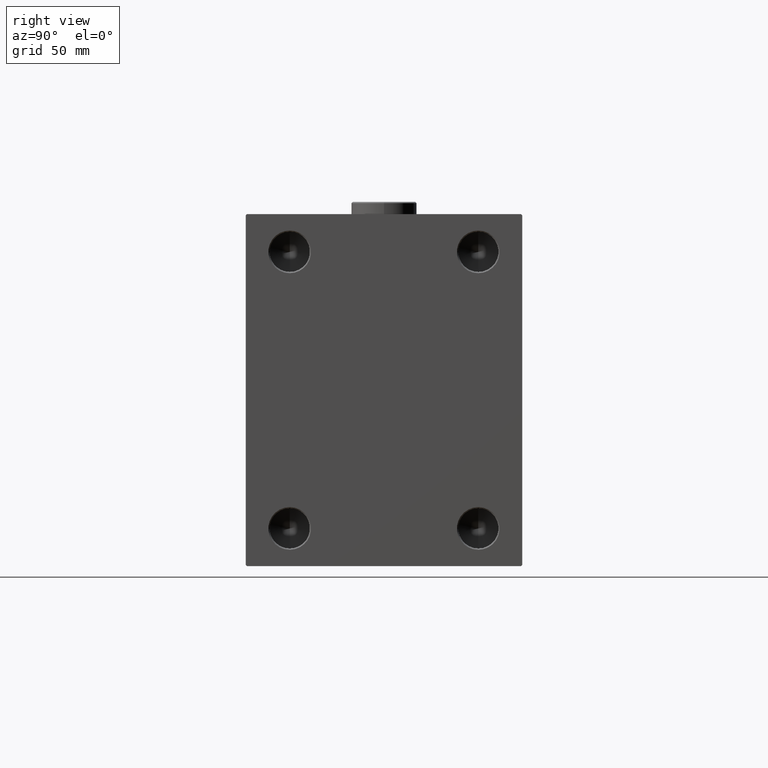
[diagram: clean part render]
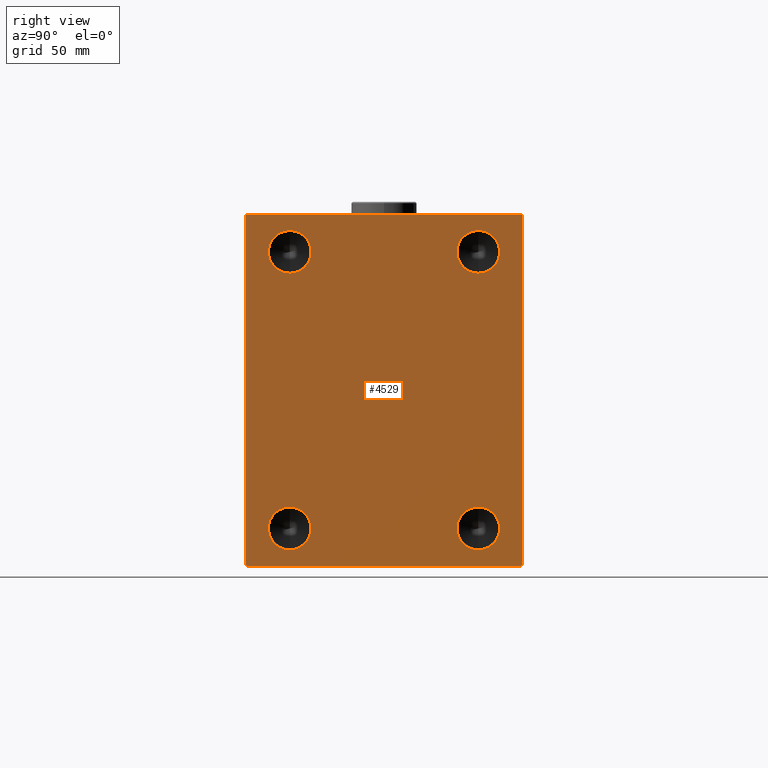
[diagram: same view with one face highlighted and labeled with its STEP entity id]
A machine part, right view. The second image highlights one B-rep face of the part: STEP entity #4529.
In plain terms, the highlighted planar face has unit normal (1, 0, 0).
Its self-contained STEP definition (entity closure, byte-faithful):
#95 = CARTESIAN_POINT ( 'NONE',  ( 213.0000000000000000, 37.50000000000000000, 55.00000000000000711 ) ) ;
#547 = CARTESIAN_POINT ( 'NONE',  ( 213.0000000000000000, -37.49999999999999289, -46.50000000000000000 ) ) ;
#576 = ORIENTED_EDGE ( 'NONE', *, *, #14707, .T. ) ;
#1031 = AXIS2_PLACEMENT_3D ( 'NONE', #27943, #34636, #17073 ) ;
#1363 = VERTEX_POINT ( 'NONE', #32350 ) ;
#1553 = CARTESIAN_POINT ( 'NONE',  ( 213.0000000000000000, -54.50000000000002132, 70.00000000000000000 ) ) ;
#1687 = CARTESIAN_POINT ( 'NONE',  ( 213.0000000000000000, -62.24999999999963762, 62.25000000000049738 ) ) ;
#1816 = ORIENTED_EDGE ( 'NONE', *, *, #44377, .F. ) ;
#2412 = FACE_BOUND ( 'NONE', #18144, .T. ) ;
#2596 = EDGE_CURVE ( 'NONE', #9060, #14529, #30541, .T. ) ;
#3032 = ORIENTED_EDGE ( 'NONE', *, *, #2596, .F. ) ;
#3172 = EDGE_CURVE ( 'NONE', #29017, #17924, #32033, .T. ) ;
#3932 = ORIENTED_EDGE ( 'NONE', *, *, #7770, .F. ) ;
#4366 = CARTESIAN_POINT ( 'NONE',  ( 213.0000000000000000, 37.50000000000000000, -54.99999999999999289 ) ) ;
#4529 = ADVANCED_FACE ( 'NONE', ( #2412, #30614, #37307, #33180, #40097 ), #33855, .T. ) ;
#4696 = AXIS2_PLACEMENT_3D ( 'NONE', #10015, #34059, #30594 ) ;
#4802 = VECTOR ( 'NONE', #31273, 1000.000000000000000 ) ;
#5226 = VECTOR ( 'NONE', #16673, 1000.000000000000000 ) ;
#5379 = DIRECTION ( 'NONE',  ( 0.000000000000000000, -0.7071067811865524577, -0.7071067811865426878 ) ) ;
#5568 = EDGE_CURVE ( 'NONE', #13495, #21477, #7018, .T. ) ;
#5569 = ORIENTED_EDGE ( 'NONE', *, *, #44127, .F. ) ;
#5657 = CARTESIAN_POINT ( 'NONE',  ( 213.0000000000000000, -37.49999999999999289, -63.49999999999998579 ) ) ;
#5779 = DIRECTION ( 'NONE',  ( 0.000000000000000000, 0.000000000000000000, -1.000000000000000000 ) ) ;
#6039 = EDGE_CURVE ( 'NONE', #39180, #33343, #30589, .T. ) ;
#6815 = ORIENTED_EDGE ( 'NONE', *, *, #23682, .F. ) ;
#7018 = CIRCLE ( 'NONE', #11428, 8.500000000000007105 ) ;
#7353 = VERTEX_POINT ( 'NONE', #30491 ) ;
#7770 = EDGE_CURVE ( 'NONE', #17924, #29017, #11266, .T. ) ;
#8498 = LINE ( 'NONE', #12421, #11776 ) ;
#9032 = VECTOR ( 'NONE', #33321, 1000.000000000000000 ) ;
#9060 = VERTEX_POINT ( 'NONE', #547 ) ;
#9074 = EDGE_CURVE ( 'NONE', #33343, #11322, #17899, .T. ) ;
#9185 = EDGE_CURVE ( 'NONE', #1363, #26577, #37127, .T. ) ;
#9430 = CARTESIAN_POINT ( 'NONE',  ( 213.0000000000000000, -55.00000000000000000, 69.50000000000002842 ) ) ;
#9534 = CIRCLE ( 'NONE', #39810, 8.500000000000007105 ) ;
#9825 = AXIS2_PLACEMENT_3D ( 'NONE', #16420, #30751, #5779 ) ;
#10015 = CARTESIAN_POINT ( 'NONE',  ( 213.0000000000000000, -37.49999999999999289, -54.99999999999999289 ) ) ;
#10063 = DIRECTION ( 'NONE',  ( 1.000000000000000000, -0.000000000000000000, -0.000000000000000000 ) ) ;
#10270 = DIRECTION ( 'NONE',  ( 0.000000000000000000, 0.000000000000000000, -1.000000000000000000 ) ) ;
#10719 = ORIENTED_EDGE ( 'NONE', *, *, #30114, .T. ) ;
#10731 = CARTESIAN_POINT ( 'NONE',  ( 213.0000000000000000, -55.00000000000000000, -70.00000000000000000 ) ) ;
#11028 = CARTESIAN_POINT ( 'NONE',  ( 213.0000000000000000, 55.00000000000000711, -69.50000000000001421 ) ) ;
#11266 = CIRCLE ( 'NONE', #23813, 8.500000000000007105 ) ;
#11322 = VERTEX_POINT ( 'NONE', #17510 ) ;
#11328 = VERTEX_POINT ( 'NONE', #9430 ) ;
#11428 = AXIS2_PLACEMENT_3D ( 'NONE', #4366, #22647, #32346 ) ;
#11776 = VECTOR ( 'NONE', #22608, 1000.000000000000000 ) ;
#12011 = EDGE_CURVE ( 'NONE', #7353, #18759, #44326, .T. ) ;
#12074 = ORIENTED_EDGE ( 'NONE', *, *, #44436, .T. ) ;
#12421 = CARTESIAN_POINT ( 'NONE',  ( 213.0000000000000000, 55.00000000000000711, -69.99999999999998579 ) ) ;
#12774 = LINE ( 'NONE', #1687, #21766 ) ;
#13045 = AXIS2_PLACEMENT_3D ( 'NONE', #13992, #10063, #17228 ) ;
#13423 = CARTESIAN_POINT ( 'NONE',  ( 213.0000000000000000, 37.50000000000000000, -63.49999999999998579 ) ) ;
#13495 = VERTEX_POINT ( 'NONE', #16803 ) ;
#13992 = CARTESIAN_POINT ( 'NONE',  ( 213.0000000000000000, 37.50000000000000000, -54.99999999999999289 ) ) ;
#14529 = VERTEX_POINT ( 'NONE', #5657 ) ;
#14568 = ORIENTED_EDGE ( 'NONE', *, *, #9185, .F. ) ;
#14707 = EDGE_CURVE ( 'NONE', #18759, #11328, #12774, .T. ) ;
#14739 = CARTESIAN_POINT ( 'NONE',  ( 213.0000000000000000, -37.49999999999999289, 55.00000000000000711 ) ) ;
#15055 = CARTESIAN_POINT ( 'NONE',  ( 213.0000000000000000, -55.00000000000000000, -69.50000000000000000 ) ) ;
#15340 = LINE ( 'NONE', #40057, #34620 ) ;
#15477 = AXIS2_PLACEMENT_3D ( 'NONE', #14739, #41843, #41615 ) ;
#15768 = ORIENTED_EDGE ( 'NONE', *, *, #6039, .T. ) ;
#16137 = CARTESIAN_POINT ( 'NONE',  ( 213.0000000000000000, -54.49999999999997158, -70.00000000000000000 ) ) ;
#16420 = CARTESIAN_POINT ( 'NONE',  ( 213.0000000000000000, -37.49999999999999289, 55.00000000000000711 ) ) ;
#16512 = CARTESIAN_POINT ( 'NONE',  ( 213.0000000000000000, 0.000000000000000000, 0.000000000000000000 ) ) ;
#16673 = DIRECTION ( 'NONE',  ( 0.000000000000000000, 0.000000000000000000, -1.000000000000000000 ) ) ;
#16803 = CARTESIAN_POINT ( 'NONE',  ( 213.0000000000000000, 37.50000000000000000, -46.50000000000000000 ) ) ;
#17073 = DIRECTION ( 'NONE',  ( 0.000000000000000000, 0.000000000000000000, -1.000000000000000000 ) ) ;
#17228 = DIRECTION ( 'NONE',  ( 0.000000000000000000, 0.000000000000000000, -1.000000000000000000 ) ) ;
#17510 = CARTESIAN_POINT ( 'NONE',  ( 213.0000000000000000, 54.50000000000004263, -69.99999999999998579 ) ) ;
#17899 = LINE ( 'NONE', #10731, #9032 ) ;
#17924 = VERTEX_POINT ( 'NONE', #37435 ) ;
#18144 = EDGE_LOOP ( 'NONE', ( #21231, #3932 ) ) ;
#18759 = VERTEX_POINT ( 'NONE', #1553 ) ;
#18971 = ORIENTED_EDGE ( 'NONE', *, *, #5568, .F. ) ;
#19538 = DIRECTION ( 'NONE',  ( 1.000000000000000000, 0.000000000000000000, 0.000000000000000000 ) ) ;
#19975 = DIRECTION ( 'NONE',  ( 1.000000000000000000, -0.000000000000000000, -0.000000000000000000 ) ) ;
#20202 = CARTESIAN_POINT ( 'NONE',  ( 213.0000000000000000, -37.49999999999999289, -54.99999999999999289 ) ) ;
#20215 = EDGE_LOOP ( 'NONE', ( #3032, #5569 ) ) ;
#20569 = DIRECTION ( 'NONE',  ( -0.000000000000000000, -0.7071067811865474617, 0.7071067811865474617 ) ) ;
#20770 = EDGE_LOOP ( 'NONE', ( #18971, #6815 ) ) ;
#21231 = ORIENTED_EDGE ( 'NONE', *, *, #3172, .F. ) ;
#21477 = VERTEX_POINT ( 'NONE', #13423 ) ;
#21766 = VECTOR ( 'NONE', #5379, 1000.000000000000000 ) ;
#22368 = ORIENTED_EDGE ( 'NONE', *, *, #34717, .T. ) ;
#22608 = DIRECTION ( 'NONE',  ( 0.000000000000000000, -9.912705577010325549E-17, 1.000000000000000000 ) ) ;
#22647 = DIRECTION ( 'NONE',  ( 1.000000000000000000, -0.000000000000000000, -0.000000000000000000 ) ) ;
#23682 = EDGE_CURVE ( 'NONE', #21477, #13495, #24139, .T. ) ;
#23813 = AXIS2_PLACEMENT_3D ( 'NONE', #95, #24601, #10270 ) ;
#24139 = CIRCLE ( 'NONE', #13045, 8.500000000000007105 ) ;
#24259 = CARTESIAN_POINT ( 'NONE',  ( 213.0000000000000000, 62.25000000000002132, 62.25000000000002132 ) ) ;
#24601 = DIRECTION ( 'NONE',  ( 1.000000000000000000, -0.000000000000000000, -0.000000000000000000 ) ) ;
#26194 = AXIS2_PLACEMENT_3D ( 'NONE', #16512, #19538, #33632 ) ;
#26577 = VERTEX_POINT ( 'NONE', #37358 ) ;
#26904 = DIRECTION ( 'NONE',  ( 0.000000000000000000, 0.000000000000000000, -1.000000000000000000 ) ) ;
#27123 = CARTESIAN_POINT ( 'NONE',  ( 213.0000000000000000, -62.24999999999847233, -62.25000000000193268 ) ) ;
#27259 = EDGE_LOOP ( 'NONE', ( #35585, #576, #22368, #15768, #44561, #10719, #12074, #34934 ) ) ;
#27943 = CARTESIAN_POINT ( 'NONE',  ( 213.0000000000000000, 37.50000000000000000, 55.00000000000000711 ) ) ;
#29017 = VERTEX_POINT ( 'NONE', #33584 ) ;
#30114 = EDGE_CURVE ( 'NONE', #11322, #42579, #15340, .T. ) ;
#30473 = DIRECTION ( 'NONE',  ( 0.000000000000000000, -1.000000000000000000, -1.261617073437677999E-16 ) ) ;
#30491 = CARTESIAN_POINT ( 'NONE',  ( 213.0000000000000000, 54.50000000000002132, 70.00000000000001421 ) ) ;
#30541 = CIRCLE ( 'NONE', #4696, 8.500000000000007105 ) ;
#30548 = CARTESIAN_POINT ( 'NONE',  ( 213.0000000000000000, -55.00000000000000000, 70.00000000000000000 ) ) ;
#30589 = LINE ( 'NONE', #27123, #4802 ) ;
#30594 = DIRECTION ( 'NONE',  ( 0.000000000000000000, 0.000000000000000000, -1.000000000000000000 ) ) ;
#30614 = FACE_BOUND ( 'NONE', #40879, .T. ) ;
#30751 = DIRECTION ( 'NONE',  ( 1.000000000000000000, -0.000000000000000000, -0.000000000000000000 ) ) ;
#31273 = DIRECTION ( 'NONE',  ( -0.000000000000000000, 0.7071067811865672237, -0.7071067811865279218 ) ) ;
#31923 = CARTESIAN_POINT ( 'NONE',  ( 213.0000000000000000, 54.99999999999999289, 69.50000000000004263 ) ) ;
#32033 = CIRCLE ( 'NONE', #1031, 8.500000000000007105 ) ;
#32268 = EDGE_CURVE ( 'NONE', #42230, #7353, #37422, .T. ) ;
#32346 = DIRECTION ( 'NONE',  ( 0.000000000000000000, 0.000000000000000000, -1.000000000000000000 ) ) ;
#32350 = CARTESIAN_POINT ( 'NONE',  ( 213.0000000000000000, -37.49999999999999289, 63.50000000000000000 ) ) ;
#33180 = FACE_BOUND ( 'NONE', #20770, .T. ) ;
#33321 = DIRECTION ( 'NONE',  ( 0.000000000000000000, 1.000000000000000000, 1.261617073437677752E-16 ) ) ;
#33343 = VERTEX_POINT ( 'NONE', #16137 ) ;
#33584 = CARTESIAN_POINT ( 'NONE',  ( 213.0000000000000000, 37.50000000000000000, 63.50000000000000000 ) ) ;
#33632 = DIRECTION ( 'NONE',  ( 0.000000000000000000, 0.000000000000000000, -1.000000000000000000 ) ) ;
#33855 = PLANE ( 'NONE',  #26194 ) ;
#33928 = VECTOR ( 'NONE', #20569, 1000.000000000000114 ) ;
#34059 = DIRECTION ( 'NONE',  ( 1.000000000000000000, -0.000000000000000000, -0.000000000000000000 ) ) ;
#34620 = VECTOR ( 'NONE', #36818, 1000.000000000000000 ) ;
#34636 = DIRECTION ( 'NONE',  ( 1.000000000000000000, -0.000000000000000000, -0.000000000000000000 ) ) ;
#34717 = EDGE_CURVE ( 'NONE', #11328, #39180, #44395, .T. ) ;
#34934 = ORIENTED_EDGE ( 'NONE', *, *, #32268, .T. ) ;
#35585 = ORIENTED_EDGE ( 'NONE', *, *, #12011, .T. ) ;
#36818 = DIRECTION ( 'NONE',  ( -0.000000000000000000, 0.7071067811865426878, 0.7071067811865524577 ) ) ;
#37127 = CIRCLE ( 'NONE', #9825, 8.500000000000007105 ) ;
#37307 = FACE_BOUND ( 'NONE', #20215, .T. ) ;
#37358 = CARTESIAN_POINT ( 'NONE',  ( 213.0000000000000000, -37.49999999999999289, 46.50000000000001421 ) ) ;
#37422 = LINE ( 'NONE', #24259, #33928 ) ;
#37435 = CARTESIAN_POINT ( 'NONE',  ( 213.0000000000000000, 37.50000000000000000, 46.50000000000001421 ) ) ;
#38644 = VECTOR ( 'NONE', #30473, 1000.000000000000000 ) ;
#39180 = VERTEX_POINT ( 'NONE', #15055 ) ;
#39810 = AXIS2_PLACEMENT_3D ( 'NONE', #20202, #19975, #26904 ) ;
#40057 = CARTESIAN_POINT ( 'NONE',  ( 213.0000000000000000, 62.25000000000040501, -62.24999999999954525 ) ) ;
#40097 = FACE_OUTER_BOUND ( 'NONE', #27259, .T. ) ;
#40563 = CIRCLE ( 'NONE', #15477, 8.500000000000007105 ) ;
#40879 = EDGE_LOOP ( 'NONE', ( #14568, #1816 ) ) ;
#41615 = DIRECTION ( 'NONE',  ( 0.000000000000000000, 0.000000000000000000, -1.000000000000000000 ) ) ;
#41843 = DIRECTION ( 'NONE',  ( 1.000000000000000000, -0.000000000000000000, -0.000000000000000000 ) ) ;
#42230 = VERTEX_POINT ( 'NONE', #31923 ) ;
#42579 = VERTEX_POINT ( 'NONE', #11028 ) ;
#44097 = CARTESIAN_POINT ( 'NONE',  ( 213.0000000000000000, 54.99999999999999289, 70.00000000000001421 ) ) ;
#44127 = EDGE_CURVE ( 'NONE', #14529, #9060, #9534, .T. ) ;
#44326 = LINE ( 'NONE', #44097, #38644 ) ;
#44377 = EDGE_CURVE ( 'NONE', #26577, #1363, #40563, .T. ) ;
#44395 = LINE ( 'NONE', #30548, #5226 ) ;
#44436 = EDGE_CURVE ( 'NONE', #42579, #42230, #8498, .T. ) ;
#44561 = ORIENTED_EDGE ( 'NONE', *, *, #9074, .T. ) ;